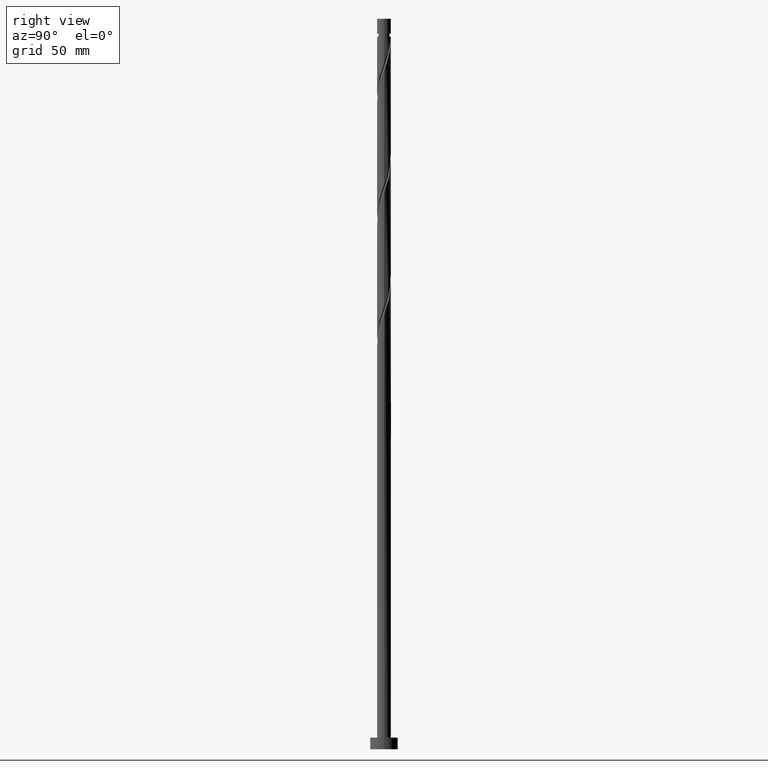
[diagram: clean part render]
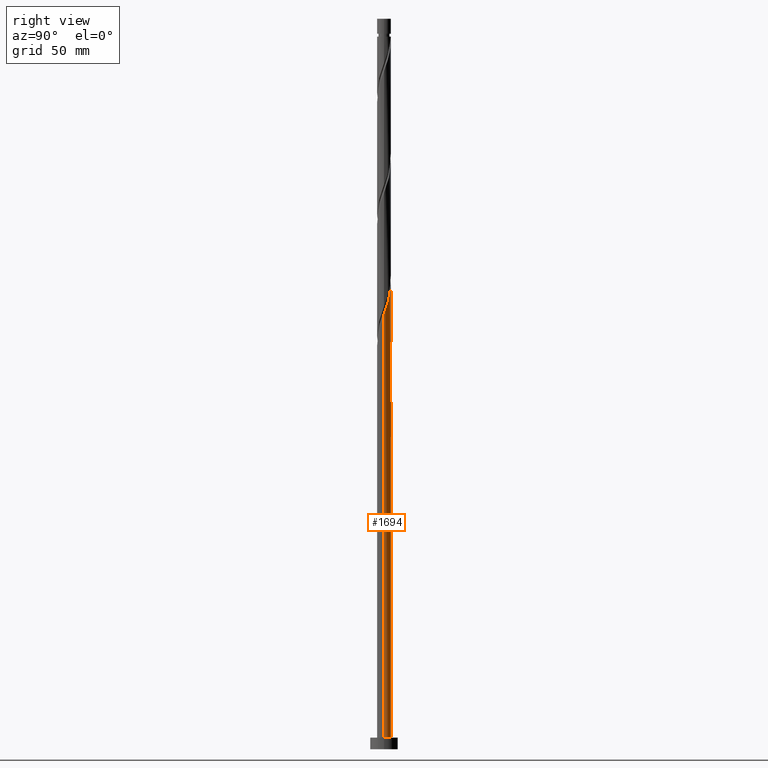
[diagram: same view with one face highlighted and labeled with its STEP entity id]
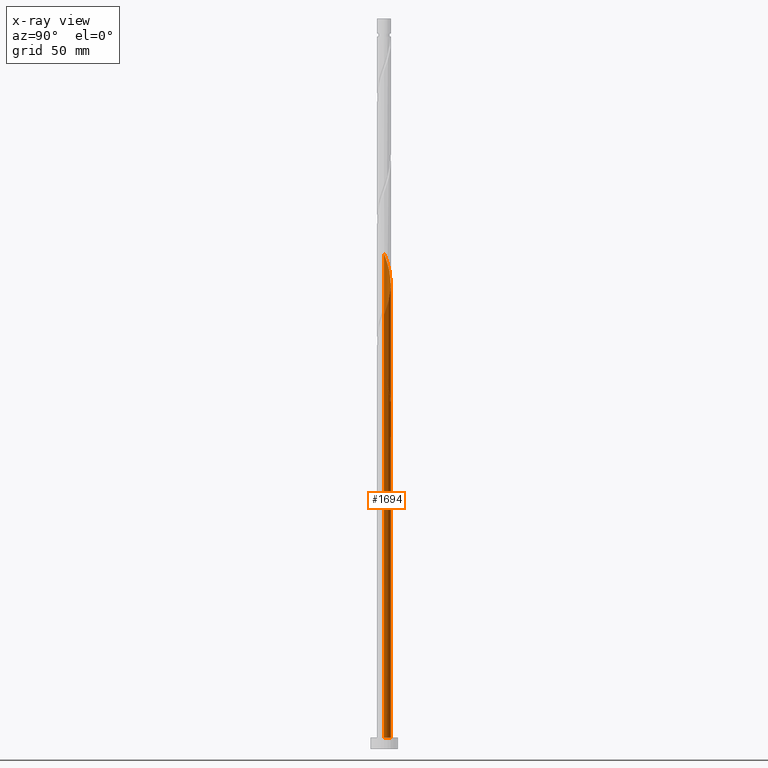
[diagram: x-ray of the same camera — body ghosted, the highlighted face saturated]
A machine part, right view. The second image highlights one B-rep face of the part: STEP entity #1694.
The next image is the same camera in x-ray: the body ghosted, the highlighted face saturated — about 0% of this face is hidden behind the body in this view.
In plain terms, the highlighted cylindrical surface (edge-blend (fillet) strip) has radius 3 mm, axis along (-0, -0, -1).
Its self-contained STEP definition (entity closure, byte-faithful):
#21 = CARTESIAN_POINT ( 'NONE',  ( -1.366312515670593308, 2.670803270464130019, 155.4608618803024171 ) ) ;
#30 = VERTEX_POINT ( 'NONE', #749 ) ;
#58 = VERTEX_POINT ( 'NONE', #149 ) ;
#67 =( BOUNDED_CURVE ( )  B_SPLINE_CURVE ( 2, ( #1415, #1710, #220, #837, #1858, #1717, #543, #239, #89, #82, #1252, #675, #1260, #534, #963 ),
 .UNSPECIFIED., .F., .T. ) 
 B_SPLINE_CURVE_WITH_KNOTS ( ( 3, 2, 2, 2, 2, 2, 2, 3 ),
 ( 0.000000000000000000, 0.008928571428571396851, 0.01785714285714290472, 0.02678571428571430157, 0.03571428571428569843, 0.04464285714285708834, 0.05357142857142860315, 0.05453034012992235419 ),
 .UNSPECIFIED. ) 
 CURVE ( )  GEOMETRIC_REPRESENTATION_ITEM ( )  RATIONAL_B_SPLINE_CURVE ( ( 0.9090909090909486956, 0.9033747362666234570, 0.9090909090909486956, 0.9033747362666234570, 0.9090909090909486956, 0.9033747362666234570, 0.9090909090909486956, 0.9033747362666234570, 0.9090909090909486956, 0.9033747362666234570, 0.9090909090909486956, 0.9033747362666234570, 0.9090909090909486956, 0.9084770030214902592, 0.9079949616362184006 ) ) 
 REPRESENTATION_ITEM ( '' )  );
#77 = ORIENTED_EDGE ( 'NONE', *, *, #430, .F. ) ;
#82 = CARTESIAN_POINT ( 'NONE',  ( -2.824749718427057577, 1.065385259292571662, 158.2733618803024456 ) ) ;
#89 = CARTESIAN_POINT ( 'NONE',  ( -2.670803270464134016, 1.366312515670596417, 157.3358618803024456 ) ) ;
#95 = LINE ( 'NONE', #1820, #662 ) ;
#99 = ORIENTED_EDGE ( 'NONE', *, *, #681, .F. ) ;
#113 = CIRCLE ( 'NONE', #1203, 3.000000000000000444 ) ;
#114 = CARTESIAN_POINT ( 'NONE',  ( -2.299807519258761701, 1.926365846447887664, 207.9608618803024171 ) ) ;
#134 = VERTEX_POINT ( 'NONE', #1786 ) ;
#149 = CARTESIAN_POINT ( 'NONE',  ( -0.5969924622639739553, 2.940000000000003944, 149.8358618803023603 ) ) ;
#172 = CARTESIAN_POINT ( 'NONE',  ( -1.926365846447884556, 2.299807519258758592, 157.3358618803023603 ) ) ;
#183 = CARTESIAN_POINT ( 'NONE',  ( -2.389823149881020292, 1.813489815877871392, 159.2108618803023319 ) ) ;
#197 =( BOUNDED_CURVE ( )  B_SPLINE_CURVE ( 2, ( #520, #376, #1551, #227, #678, #1264, #385, #976, #1271, #279, #261, #410, #1604, #1575, #1006, #850, #1148, #1720, #555, #1439, #1898, #569, #114, #858, #1741, #735, #1587, #1278, #1877, #713, #1320 ),
 .UNSPECIFIED., .F., .T. ) 
 B_SPLINE_CURVE_WITH_KNOTS ( ( 3, 2, 2, 2, 2, 2, 2, 2, 2, 2, 2, 2, 2, 2, 2, 3 ),
 ( 0.1795303401299222223, 0.1875000000000000000, 0.1964285714285713969, 0.2053571428571429047, 0.2142857142857143016, 0.2232142857142856984, 0.2321428571428570953, 0.2410714285714286031, 0.2500000000000000000, 0.2589285714285713969, 0.2678571428571429047, 0.2767857142857143016, 0.2857142857142856984, 0.2946428571428570953, 0.3035714285714286031, 0.3045303401299221391 ),
 .UNSPECIFIED. ) 
 CURVE ( )  GEOMETRIC_REPRESENTATION_ITEM ( )  RATIONAL_B_SPLINE_CURVE ( ( 0.9079949616362186227, 0.9039886423360817824, 0.9090909090909486956, 0.9033747362666234570, 0.9090909090909486956, 0.9033747362666234570, 0.9090909090909486956, 0.9033747362666234570, 0.9090909090909486956, 0.9033747362666234570, 0.9090909090909486956, 0.9033747362666234570, 0.9090909090909486956, 0.9033747362666234570, 0.9090909090909486956, 0.9033747362666234570, 0.9090909090909486956, 0.9033747362666234570, 0.9090909090909486956, 0.9033747362666234570, 0.9090909090909486956, 0.9033747362666234570, 0.9090909090909486956, 0.9033747362666234570, 0.9090909090909486956, 0.9033747362666234570, 0.9090909090909486956, 0.9033747362666234570, 0.9090909090909486956, 0.9084770030214903702, 0.9079949616362186227 ) ) 
 REPRESENTATION_ITEM ( '' )  );
#220 = CARTESIAN_POINT ( 'NONE',  ( -1.236236160654868410, 2.733444741546705803, 151.7108618803024171 ) ) ;
#227 = CARTESIAN_POINT ( 'NONE',  ( 2.872735104178516075, 0.9282509055703014322, 190.1483618803023887 ) ) ;
#235 = CARTESIAN_POINT ( 'NONE',  ( 0.000000000000000000, 0.000000000000000000, 149.8358618803023887 ) ) ;
#239 = CARTESIAN_POINT ( 'NONE',  ( -2.516856822501212232, 1.667239772048622060, 156.3983618803024456 ) ) ;
#261 = CARTESIAN_POINT ( 'NONE',  ( 1.366312515670596861, 2.670803270464134016, 196.7108618803023887 ) ) ;
#279 = CARTESIAN_POINT ( 'NONE',  ( 1.667239772048622504, 2.516856822501211788, 195.7733618803023887 ) ) ;
#308 = EDGE_CURVE ( 'NONE', #867, #539, #805, .T. ) ;
#311 = EDGE_CURVE ( 'NONE', #1632, #403, #1697, .T. ) ;
#318 = CARTESIAN_POINT ( 'NONE',  ( -2.999999999999999112, 1.054879043633850201E-14, 164.6353789582084062 ) ) ;
#336 = EDGE_CURVE ( 'NONE', #58, #30, #113, .T. ) ;
#339 = AXIS2_PLACEMENT_3D ( 'NONE', #1112, #825, #356 ) ;
#356 = DIRECTION ( 'NONE',  ( 1.000000000000000000, 0.000000000000000000, 0.000000000000000000 ) ) ;
#376 = CARTESIAN_POINT ( 'NONE',  ( 3.000000000000003997, 0.3015113445777704571, 188.3746158813600005 ) ) ;
#380 = CARTESIAN_POINT ( 'NONE',  ( 0.5969924622639749545, 2.939999999999999503, 149.8358618803023319 ) ) ;
#385 = CARTESIAN_POINT ( 'NONE',  ( 2.389823149881024733, 1.813489815877873168, 192.9608618803023603 ) ) ;
#396 =( BOUNDED_CURVE ( )  B_SPLINE_CURVE ( 2, ( #318, #1176, #1760, #467, #1059, #1638, #183, #915, #172, #771, #21, #622, #1801, #478, #1144, #684, #380 ),
 .UNSPECIFIED., .F., .T. ) 
 B_SPLINE_CURVE_WITH_KNOTS ( ( 3, 2, 2, 2, 2, 2, 2, 2, 3 ),
 ( 0.9295303401299221946, 0.9375000000000000000, 0.9464285714285713969, 0.9553571428571429047, 0.9642857142857143016, 0.9732142857142856984, 0.9821428571428570953, 0.9910714285714286031, 1.000000000000000000 ),
 .UNSPECIFIED. ) 
 CURVE ( )  GEOMETRIC_REPRESENTATION_ITEM ( )  RATIONAL_B_SPLINE_CURVE ( ( 0.9079949616362127385, 0.9039886423360758982, 0.9090909090909428114, 0.9033747362666175729, 0.9090909090909428114, 0.9033747362666175729, 0.9090909090909428114, 0.9033747362666175729, 0.9090909090909428114, 0.9033747362666175729, 0.9090909090909428114, 0.9033747362666175729, 0.9090909090909428114, 0.9033747362666175729, 0.9090909090909428114, 0.9033747362666175729, 0.9090909090909428114 ) ) 
 REPRESENTATION_ITEM ( '' )  );
#403 = VERTEX_POINT ( 'NONE', #1103 ) ;
#408 = DIRECTION ( 'NONE',  ( -1.000000000000000000, 0.000000000000000000, 0.000000000000000000 ) ) ;
#410 = CARTESIAN_POINT ( 'NONE',  ( 1.065385259292571885, 2.824749718427057577, 197.6483618803023887 ) ) ;
#430 = EDGE_CURVE ( 'NONE', #653, #1632, #197, .T. ) ;
#440 = ORIENTED_EDGE ( 'NONE', *, *, #311, .F. ) ;
#441 = AXIS2_PLACEMENT_3D ( 'NONE', #568, #1876, #408 ) ;
#467 = CARTESIAN_POINT ( 'NONE',  ( -2.872735104178511634, 0.9282509055703008771, 162.0233618803023887 ) ) ;
#478 = CARTESIAN_POINT ( 'NONE',  ( -0.4101078809741711129, 2.990997868343353350, 152.6483618803023603 ) ) ;
#487 = CARTESIAN_POINT ( 'NONE',  ( -3.000000000000000444, 0.000000000000000000, 5.000000000000000000 ) ) ;
#494 = EDGE_CURVE ( 'NONE', #653, #867, #95, .T. ) ;
#520 = CARTESIAN_POINT ( 'NONE',  ( 3.000000000000005329, 1.074655693549865574E-15, 187.5363448023963713 ) ) ;
#534 = CARTESIAN_POINT ( 'NONE',  ( -3.000000000000005329, 0.03609869149915982678, 161.1859821141713098 ) ) ;
#539 = VERTEX_POINT ( 'NONE', #487 ) ;
#543 = CARTESIAN_POINT ( 'NONE',  ( -2.299807519258761701, 1.926365846447887664, 155.4608618803023603 ) ) ;
#544 = ORIENTED_EDGE ( 'NONE', *, *, #494, .T. ) ;
#555 = CARTESIAN_POINT ( 'NONE',  ( -1.236236160654868410, 2.733444741546705803, 204.2108618803023887 ) ) ;
#564 = ORIENTED_EDGE ( 'NONE', *, *, #647, .F. ) ;
#568 = CARTESIAN_POINT ( 'NONE',  ( 0.000000000000000000, 0.000000000000000000, 315.0000000000000000 ) ) ;
#569 = CARTESIAN_POINT ( 'NONE',  ( -2.082758216016312502, 2.185491920847153935, 207.0233618803024171 ) ) ;
#575 = CARTESIAN_POINT ( 'NONE',  ( -3.000000000000000444, 0.000000000000000000, 315.0000000000000000 ) ) ;
#577 = CYLINDRICAL_SURFACE ( 'NONE', #441, 3.000000000000000444 ) ;
#622 = CARTESIAN_POINT ( 'NONE',  ( -1.065385259292568998, 2.824749718427051803, 154.5233618803024171 ) ) ;
#647 = EDGE_CURVE ( 'NONE', #403, #30, #396, .T. ) ;
#653 = VERTEX_POINT ( 'NONE', #691 ) ;
#662 = VECTOR ( 'NONE', #792, 1000.000000000000000 ) ;
#675 = CARTESIAN_POINT ( 'NONE',  ( -2.990997868343358235, 0.4101078809741725006, 160.1483618803023887 ) ) ;
#678 = CARTESIAN_POINT ( 'NONE',  ( 2.733444741546706691, 1.236236160654867744, 191.0858618803023887 ) ) ;
#681 = EDGE_CURVE ( 'NONE', #58, #134, #67, .T. ) ;
#684 = CARTESIAN_POINT ( 'NONE',  ( 0.2657340189576479217, 3.007264895821487372, 150.7733618803023887 ) ) ;
#687 = DIRECTION ( 'NONE',  ( 0.000000000000000000, -0.000000000000000000, -1.000000000000000000 ) ) ;
#691 = CARTESIAN_POINT ( 'NONE',  ( 3.000000000000005329, 1.074655693549865574E-15, 187.5363448023963713 ) ) ;
#695 = CARTESIAN_POINT ( 'NONE',  ( -3.000000000000005773, 6.921827470607638618E-15, 213.7863448023963429 ) ) ;
#713 = CARTESIAN_POINT ( 'NONE',  ( -3.000000000000004441, 0.03609869149916792447, 213.6859821141712814 ) ) ;
#735 = CARTESIAN_POINT ( 'NONE',  ( -2.824749718427057577, 1.065385259292571662, 210.7733618803024456 ) ) ;
#749 = CARTESIAN_POINT ( 'NONE',  ( 0.5969924622639749545, 2.939999999999999503, 149.8358618803023603 ) ) ;
#771 = CARTESIAN_POINT ( 'NONE',  ( -1.667239772048618729, 2.516856822501207347, 156.3983618803023603 ) ) ;
#792 = DIRECTION ( 'NONE',  ( -0.000000000000000000, -0.000000000000000000, -1.000000000000000000 ) ) ;
#805 = CIRCLE ( 'NONE', #339, 3.000000000000000444 ) ;
#825 = DIRECTION ( 'NONE',  ( 0.000000000000000000, 0.000000000000000000, 1.000000000000000000 ) ) ;
#833 = CARTESIAN_POINT ( 'NONE',  ( -3.000000000000000444, 0.000000000000000000, 315.0000000000000000 ) ) ;
#837 = CARTESIAN_POINT ( 'NONE',  ( -1.544221415739434944, 2.594154378914896864, 152.6483618803023887 ) ) ;
#850 = CARTESIAN_POINT ( 'NONE',  ( -0.2657340189576472000, 3.007264895821492701, 201.3983618803024456 ) ) ;
#858 = CARTESIAN_POINT ( 'NONE',  ( -2.516856822501212232, 1.667239772048622060, 208.8983618803024456 ) ) ;
#867 = VERTEX_POINT ( 'NONE', #903 ) ;
#903 = CARTESIAN_POINT ( 'NONE',  ( 3.000000000000000444, 3.673940397442060361E-16, 5.000000000000000000 ) ) ;
#915 = CARTESIAN_POINT ( 'NONE',  ( -2.185491920847150382, 2.082758216016309394, 158.2733618803023603 ) ) ;
#940 = DIRECTION ( 'NONE',  ( -1.000000000000000000, 0.000000000000000000, 0.000000000000000000 ) ) ;
#958 = VECTOR ( 'NONE', #1706, 1000.000000000000000 ) ;
#963 = CARTESIAN_POINT ( 'NONE',  ( -3.000000000000005329, -1.432874258066487300E-15, 161.2863448023963713 ) ) ;
#976 = CARTESIAN_POINT ( 'NONE',  ( 2.185491920847153935, 2.082758216016311614, 193.8983618803024740 ) ) ;
#982 = EDGE_CURVE ( 'NONE', #134, #539, #1895, .T. ) ;
#1006 = CARTESIAN_POINT ( 'NONE',  ( 0.07218693100826298337, 2.999131382082425024, 200.4608618803024171 ) ) ;
#1059 = CARTESIAN_POINT ( 'NONE',  ( -2.733444741546700030, 1.236236160654866634, 161.0858618803023319 ) ) ;
#1069 = ORIENTED_EDGE ( 'NONE', *, *, #982, .F. ) ;
#1103 = CARTESIAN_POINT ( 'NONE',  ( -2.999999999999999112, 1.054879043633850358E-14, 164.6353789582084062 ) ) ;
#1112 = CARTESIAN_POINT ( 'NONE',  ( 0.000000000000000000, 0.000000000000000000, 5.000000000000000000 ) ) ;
#1144 = CARTESIAN_POINT ( 'NONE',  ( -0.07218693100826159559, 2.999131382082419695, 151.7108618803024171 ) ) ;
#1148 = CARTESIAN_POINT ( 'NONE',  ( -0.5969924622639740663, 2.940000000000003944, 202.3358618803023887 ) ) ;
#1176 = CARTESIAN_POINT ( 'NONE',  ( -2.999999999999999112, 0.3015113445777701795, 163.7971078792448338 ) ) ;
#1203 = AXIS2_PLACEMENT_3D ( 'NONE', #235, #687, #940 ) ;
#1252 = CARTESIAN_POINT ( 'NONE',  ( -2.907873793385207239, 0.7377465701333716375, 159.2108618803023887 ) ) ;
#1260 = CARTESIAN_POINT ( 'NONE',  ( -2.999131382082425468, 0.07218693100826233111, 161.0858618803024456 ) ) ;
#1264 = CARTESIAN_POINT ( 'NONE',  ( 2.594154378914896864, 1.544221415739434500, 192.0233618803024171 ) ) ;
#1271 = CARTESIAN_POINT ( 'NONE',  ( 1.926365846447887664, 2.299807519258761701, 194.8358618803024171 ) ) ;
#1278 = CARTESIAN_POINT ( 'NONE',  ( -2.990997868343358235, 0.4101078809741725006, 212.6483618803024456 ) ) ;
#1320 = CARTESIAN_POINT ( 'NONE',  ( -3.000000000000005773, 6.921827470607638618E-15, 213.7863448023963429 ) ) ;
#1415 = CARTESIAN_POINT ( 'NONE',  ( -0.5969924622639739553, 2.940000000000003944, 149.8358618803023603 ) ) ;
#1439 = CARTESIAN_POINT ( 'NONE',  ( -1.544221415739434944, 2.594154378914896864, 205.1483618803024456 ) ) ;
#1448 = FACE_OUTER_BOUND ( 'NONE', #1463, .T. ) ;
#1463 = EDGE_LOOP ( 'NONE', ( #77, #544, #1492, #1069, #99, #1641, #564, #440 ) ) ;
#1492 = ORIENTED_EDGE ( 'NONE', *, *, #308, .T. ) ;
#1551 = CARTESIAN_POINT ( 'NONE',  ( 2.940000000000003944, 0.5969924622639742884, 189.2108618803024456 ) ) ;
#1575 = CARTESIAN_POINT ( 'NONE',  ( 0.4101078809741730558, 2.990997868343357791, 199.5233618803024171 ) ) ;
#1579 = VECTOR ( 'NONE', #1746, 1000.000000000000000 ) ;
#1587 = CARTESIAN_POINT ( 'NONE',  ( -2.907873793385207239, 0.7377465701333716375, 211.7108618803023319 ) ) ;
#1604 = CARTESIAN_POINT ( 'NONE',  ( 0.7377465701333723036, 2.907873793385206351, 198.5858618803023887 ) ) ;
#1632 = VERTEX_POINT ( 'NONE', #695 ) ;
#1638 = CARTESIAN_POINT ( 'NONE',  ( -2.594154378914891979, 1.544221415739432945, 160.1483618803023887 ) ) ;
#1641 = ORIENTED_EDGE ( 'NONE', *, *, #336, .T. ) ;
#1694 = ADVANCED_FACE ( 'NONE', ( #1448 ), #577, .T. ) ;
#1697 = LINE ( 'NONE', #833, #958 ) ;
#1706 = DIRECTION ( 'NONE',  ( -0.000000000000000000, -0.000000000000000000, -1.000000000000000000 ) ) ;
#1710 = CARTESIAN_POINT ( 'NONE',  ( -0.9282509055703019873, 2.872735104178516075, 150.7733618803024456 ) ) ;
#1717 = CARTESIAN_POINT ( 'NONE',  ( -2.082758216016312502, 2.185491920847153935, 154.5233618803024171 ) ) ;
#1720 = CARTESIAN_POINT ( 'NONE',  ( -0.9282509055703019873, 2.872735104178516075, 203.2733618803024456 ) ) ;
#1741 = CARTESIAN_POINT ( 'NONE',  ( -2.670803270464134016, 1.366312515670596417, 209.8358618803023603 ) ) ;
#1746 = DIRECTION ( 'NONE',  ( -0.000000000000000000, -0.000000000000000000, -1.000000000000000000 ) ) ;
#1760 = CARTESIAN_POINT ( 'NONE',  ( -2.939999999999999503, 0.5969924622639743994, 162.9608618803024171 ) ) ;
#1786 = CARTESIAN_POINT ( 'NONE',  ( -3.000000000000005329, -1.432874258066487300E-15, 161.2863448023963997 ) ) ;
#1801 = CARTESIAN_POINT ( 'NONE',  ( -0.7377465701333699721, 2.907873793385202799, 153.5858618803024171 ) ) ;
#1820 = CARTESIAN_POINT ( 'NONE',  ( 3.000000000000000444, 3.673940397442060361E-16, 315.0000000000000000 ) ) ;
#1858 = CARTESIAN_POINT ( 'NONE',  ( -1.813489815877873834, 2.389823149881024289, 153.5858618803024171 ) ) ;
#1876 = DIRECTION ( 'NONE',  ( -0.000000000000000000, -0.000000000000000000, -1.000000000000000000 ) ) ;
#1877 = CARTESIAN_POINT ( 'NONE',  ( -2.999131382082425468, 0.07218693100826233111, 213.5858618803024171 ) ) ;
#1895 = LINE ( 'NONE', #575, #1579 ) ;
#1898 = CARTESIAN_POINT ( 'NONE',  ( -1.813489815877873834, 2.389823149881024289, 206.0858618803024456 ) ) ;